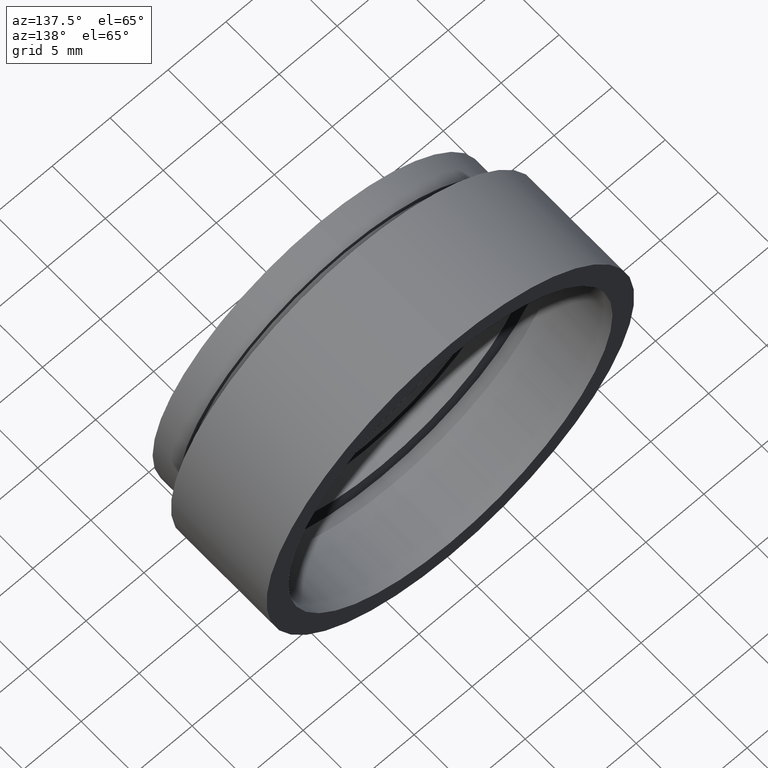
[diagram: clean part render]
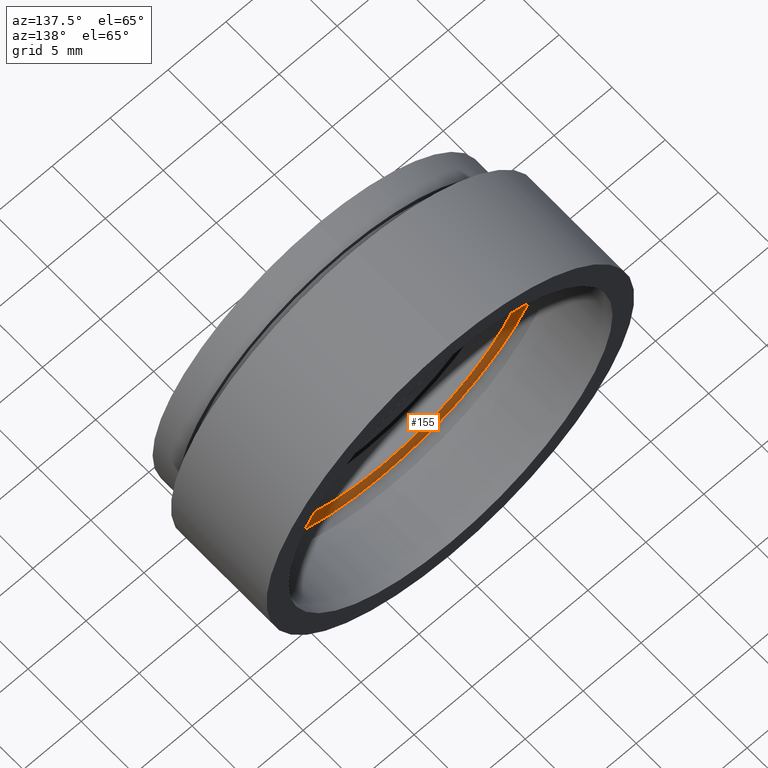
[diagram: same view with one face highlighted and labeled with its STEP entity id]
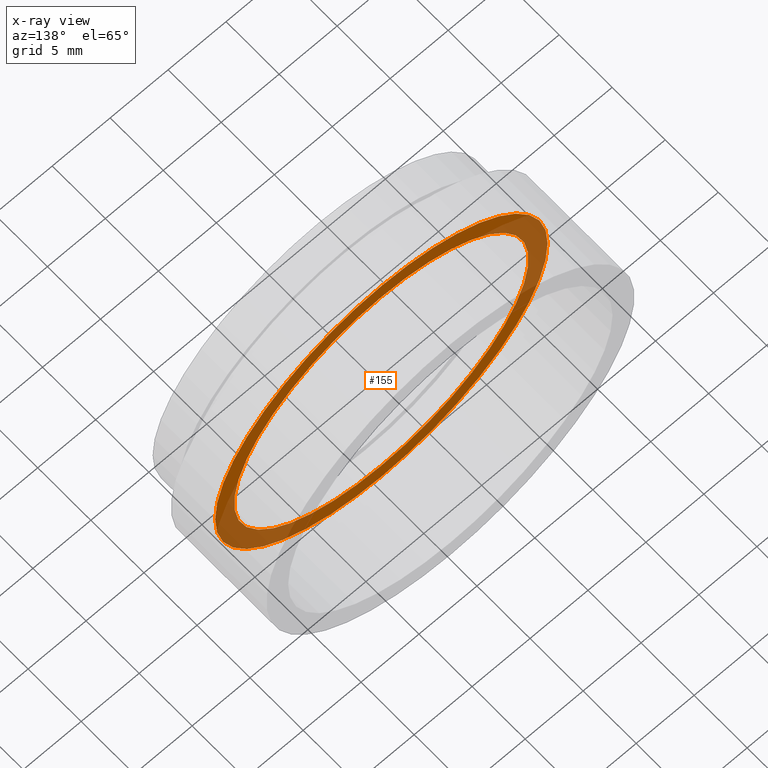
[diagram: x-ray of the same camera — body ghosted, the highlighted face saturated]
A machine part, auxiliary view. The second image highlights one B-rep face of the part: STEP entity #155.
The next image is the same camera in x-ray: the body ghosted, the highlighted face saturated — about 36% of this face is hidden behind the body in this view.
In plain terms, the highlighted planar face has unit normal (0, 1, 0).
Its self-contained STEP definition (entity closure, byte-faithful):
#21 = AXIS2_PLACEMENT_3D ( 'NONE', #38, #318, #605 ) ;
#38 = CARTESIAN_POINT ( 'NONE',  ( 0.0000000000000000000, 6.000000000000000000, 0.0000000000000000000 ) ) ;
#49 = DIRECTION ( 'NONE',  ( -0.0000000000000000000, -1.000000000000000000, -0.0000000000000000000 ) ) ;
#61 = AXIS2_PLACEMENT_3D ( 'NONE', #611, #49, #278 ) ;
#62 = ORIENTED_EDGE ( 'NONE', *, *, #339, .T. ) ;
#65 = VERTEX_POINT ( 'NONE', #302 ) ;
#70 = CARTESIAN_POINT ( 'NONE',  ( 1.555301434917138400E-015, 6.000000000000000000, 12.69999999999999900 ) ) ;
#88 = AXIS2_PLACEMENT_3D ( 'NONE', #279, #284, #112 ) ;
#112 = DIRECTION ( 'NONE',  ( 0.0000000000000000000, 0.0000000000000000000, -1.000000000000000000 ) ) ;
#128 = CARTESIAN_POINT ( 'NONE',  ( 0.0000000000000000000, 6.000000000000000000, -14.35000000000000100 ) ) ;
#155 = ADVANCED_FACE ( 'NONE', ( #394, #590 ), #713, .T. ) ;
#161 = DIRECTION ( 'NONE',  ( -0.0000000000000000000, -1.000000000000000000, -0.0000000000000000000 ) ) ;
#162 = ORIENTED_EDGE ( 'NONE', *, *, #304, .F. ) ;
#168 = EDGE_CURVE ( 'NONE', #648, #693, #291, .T. ) ;
#193 = CIRCLE ( 'NONE', #88, 12.69999999999999900 ) ;
#237 = CIRCLE ( 'NONE', #360, 14.35000000000000100 ) ;
#278 = DIRECTION ( 'NONE',  ( 0.0000000000000000000, 0.0000000000000000000, -1.000000000000000000 ) ) ;
#279 = CARTESIAN_POINT ( 'NONE',  ( 0.0000000000000000000, 6.000000000000000000, 0.0000000000000000000 ) ) ;
#284 = DIRECTION ( 'NONE',  ( -0.0000000000000000000, -1.000000000000000000, -0.0000000000000000000 ) ) ;
#291 = CIRCLE ( 'NONE', #21, 12.69999999999999900 ) ;
#302 = CARTESIAN_POINT ( 'NONE',  ( 1.757368156776452000E-015, 6.000000000000000000, 14.35000000000000100 ) ) ;
#304 = EDGE_CURVE ( 'NONE', #562, #65, #237, .T. ) ;
#318 = DIRECTION ( 'NONE',  ( -0.0000000000000000000, -1.000000000000000000, -0.0000000000000000000 ) ) ;
#320 = CARTESIAN_POINT ( 'NONE',  ( 14.35000000000000100, 6.000000000000000000, 0.0000000000000000000 ) ) ;
#334 = DIRECTION ( 'NONE',  ( 0.0000000000000000000, 0.0000000000000000000, -1.000000000000000000 ) ) ;
#337 = CIRCLE ( 'NONE', #61, 14.35000000000000100 ) ;
#339 = EDGE_CURVE ( 'NONE', #693, #648, #193, .T. ) ;
#360 = AXIS2_PLACEMENT_3D ( 'NONE', #445, #161, #334 ) ;
#392 = EDGE_CURVE ( 'NONE', #65, #562, #337, .T. ) ;
#394 = FACE_BOUND ( 'NONE', #414, .T. ) ;
#414 = EDGE_LOOP ( 'NONE', ( #591, #62 ) ) ;
#445 = CARTESIAN_POINT ( 'NONE',  ( 0.0000000000000000000, 6.000000000000000000, 0.0000000000000000000 ) ) ;
#487 = DIRECTION ( 'NONE',  ( 0.0000000000000000000, 1.000000000000000000, 0.0000000000000000000 ) ) ;
#547 = EDGE_LOOP ( 'NONE', ( #162, #701 ) ) ;
#548 = DIRECTION ( 'NONE',  ( 0.0000000000000000000, -0.0000000000000000000, 1.000000000000000000 ) ) ;
#562 = VERTEX_POINT ( 'NONE', #128 ) ;
#590 = FACE_OUTER_BOUND ( 'NONE', #547, .T. ) ;
#591 = ORIENTED_EDGE ( 'NONE', *, *, #168, .T. ) ;
#605 = DIRECTION ( 'NONE',  ( 0.0000000000000000000, 0.0000000000000000000, -1.000000000000000000 ) ) ;
#611 = CARTESIAN_POINT ( 'NONE',  ( 0.0000000000000000000, 6.000000000000000000, 0.0000000000000000000 ) ) ;
#648 = VERTEX_POINT ( 'NONE', #697 ) ;
#693 = VERTEX_POINT ( 'NONE', #70 ) ;
#697 = CARTESIAN_POINT ( 'NONE',  ( 0.0000000000000000000, 6.000000000000000000, -12.69999999999999900 ) ) ;
#701 = ORIENTED_EDGE ( 'NONE', *, *, #392, .F. ) ;
#713 = PLANE ( 'NONE',  #714 ) ;
#714 = AXIS2_PLACEMENT_3D ( 'NONE', #320, #487, #548 ) ;